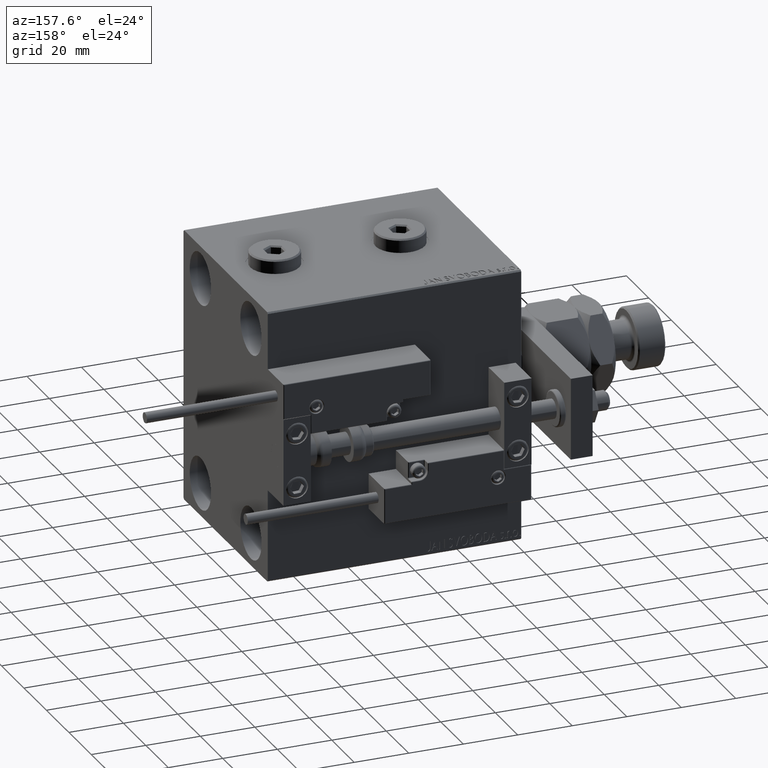
[diagram: clean part render]
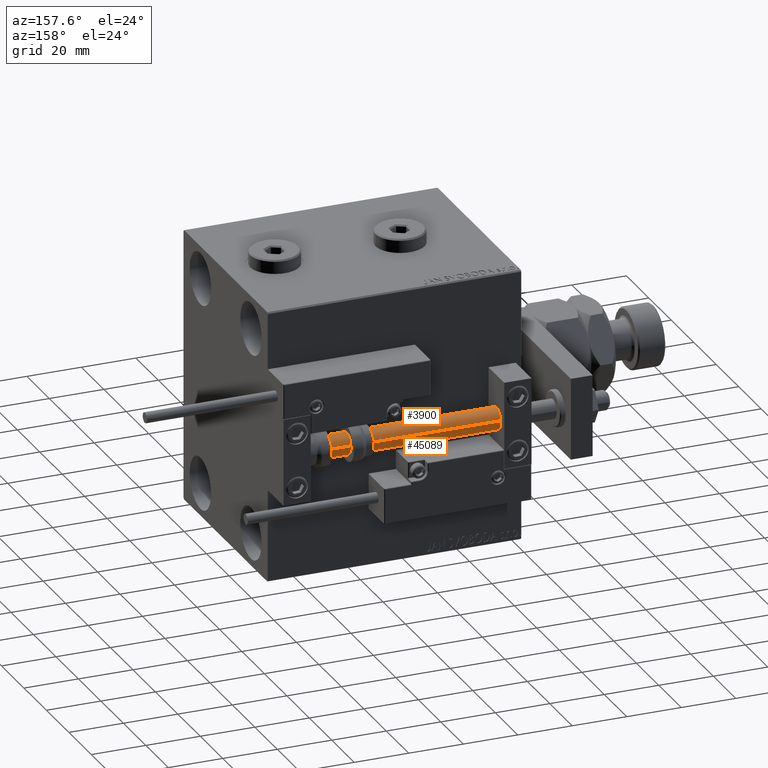
[diagram: same view with one multi-face feature highlighted, each face labeled with its STEP entity id]
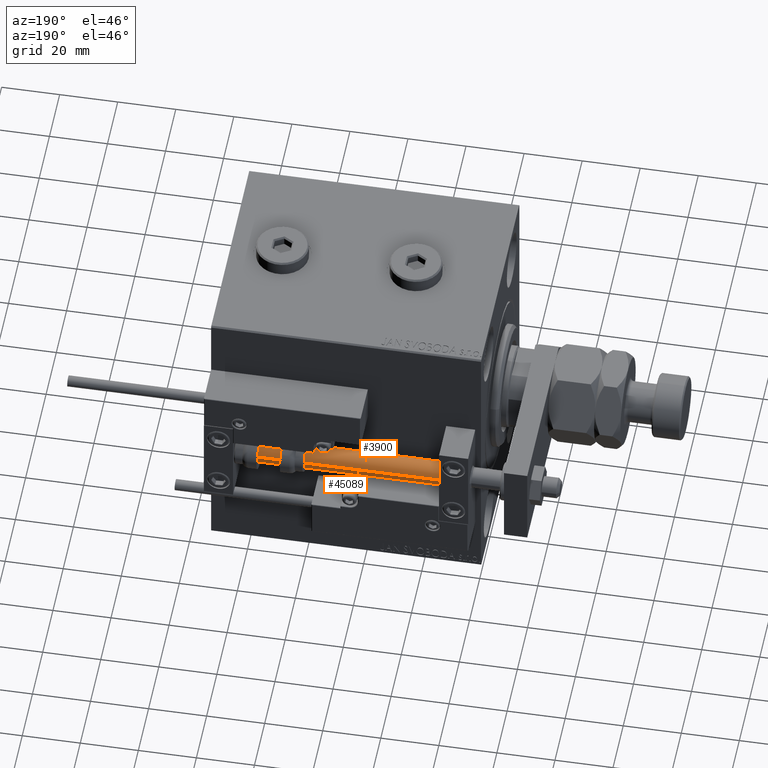
[diagram: same view with one multi-face feature highlighted, each face labeled with its STEP entity id]
A machine part, auxiliary view. The highlighted faces form ONE feature: a constant-radius fillet chain: 2 tangent blend faces with common blend radius 4 mm. The faces share edges in the B-rep.
A second angle (auxiliary view) of the same feature is appended — it is thin or edge-on in the first view.
Their STEP definitions:
[1] entity #45089 (Cylinder):
#2297 = DIRECTION ( 'NONE',  ( -0.000000000000000000, -0.000000000000000000, -1.000000000000000000 ) ) ;
#2981 = CARTESIAN_POINT ( 'NONE',  ( -4.000000000000000000, 0.000000000000000000, 2.000000000000029310 ) ) ;
#8127 = EDGE_LOOP ( 'NONE', ( #23592, #14629, #40220, #35032 ) ) ;
#8922 = AXIS2_PLACEMENT_3D ( 'NONE', #25630, #21074, #33170 ) ;
#10042 = DIRECTION ( 'NONE',  ( -0.000000000000000000, -0.000000000000000000, -1.000000000000000000 ) ) ;
#10097 = FACE_OUTER_BOUND ( 'NONE', #8127, .T. ) ;
#10645 = AXIS2_PLACEMENT_3D ( 'NONE', #51470, #2297, #43392 ) ;
#12441 = CARTESIAN_POINT ( 'NONE',  ( 4.000000000000000000, 4.898587196589411843E-16, 93.00000000000000000 ) ) ;
#12802 = DIRECTION ( 'NONE',  ( -0.000000000000000000, -0.000000000000000000, -1.000000000000000000 ) ) ;
#14599 = LINE ( 'NONE', #30421, #47786 ) ;
#14608 = VERTEX_POINT ( 'NONE', #18823 ) ;
#14629 = ORIENTED_EDGE ( 'NONE', *, *, #52335, .F. ) ;
#15678 = CARTESIAN_POINT ( 'NONE',  ( -4.000000000000000000, 0.000000000000000000, 93.00000000000000000 ) ) ;
#18823 = CARTESIAN_POINT ( 'NONE',  ( 4.000000000000000000, 4.898587196589411843E-16, 2.000000000000029310 ) ) ;
#20614 = VERTEX_POINT ( 'NONE', #12441 ) ;
#21074 = DIRECTION ( 'NONE',  ( -0.000000000000000000, -0.000000000000000000, 1.000000000000000000 ) ) ;
#21192 = CARTESIAN_POINT ( 'NONE',  ( 0.000000000000000000, 0.000000000000000000, 93.00000000000000000 ) ) ;
#22421 = CYLINDRICAL_SURFACE ( 'NONE', #10645, 4.000000000000000000 ) ;
#23592 = ORIENTED_EDGE ( 'NONE', *, *, #45952, .F. ) ;
#24308 = CIRCLE ( 'NONE', #8922, 4.000000000000000000 ) ;
#25630 = CARTESIAN_POINT ( 'NONE',  ( 0.000000000000000000, 0.000000000000000000, 2.000000000000029310 ) ) ;
#28834 = VERTEX_POINT ( 'NONE', #15678 ) ;
#29170 = CARTESIAN_POINT ( 'NONE',  ( 4.000000000000000000, 4.898587196589411843E-16, 93.00000000000000000 ) ) ;
#30421 = CARTESIAN_POINT ( 'NONE',  ( -4.000000000000000000, 0.000000000000000000, 93.00000000000000000 ) ) ;
#30558 = AXIS2_PLACEMENT_3D ( 'NONE', #21192, #37595, #32484 ) ;
#32484 = DIRECTION ( 'NONE',  ( 1.000000000000000000, 0.000000000000000000, 0.000000000000000000 ) ) ;
#33170 = DIRECTION ( 'NONE',  ( 1.000000000000000000, 0.000000000000000000, 0.000000000000000000 ) ) ;
#35032 = ORIENTED_EDGE ( 'NONE', *, *, #43444, .T. ) ;
#36974 = LINE ( 'NONE', #29170, #45898 ) ;
#37595 = DIRECTION ( 'NONE',  ( 0.000000000000000000, 0.000000000000000000, 1.000000000000000000 ) ) ;
#40220 = ORIENTED_EDGE ( 'NONE', *, *, #50710, .T. ) ;
#41740 = VERTEX_POINT ( 'NONE', #2981 ) ;
#43392 = DIRECTION ( 'NONE',  ( -1.000000000000000000, 0.000000000000000000, 0.000000000000000000 ) ) ;
#43444 = EDGE_CURVE ( 'NONE', #41740, #14608, #24308, .T. ) ;
#45089 = ADVANCED_FACE ( 'NONE', ( #10097 ), #22421, .T. ) ;
#45898 = VECTOR ( 'NONE', #12802, 1000.000000000000000 ) ;
#45952 = EDGE_CURVE ( 'NONE', #20614, #14608, #36974, .T. ) ;
#46897 = CIRCLE ( 'NONE', #30558, 4.000000000000000000 ) ;
#47786 = VECTOR ( 'NONE', #10042, 1000.000000000000000 ) ;
#50710 = EDGE_CURVE ( 'NONE', #28834, #41740, #14599, .T. ) ;
#51470 = CARTESIAN_POINT ( 'NONE',  ( 0.000000000000000000, 0.000000000000000000, 93.00000000000000000 ) ) ;
#52335 = EDGE_CURVE ( 'NONE', #28834, #20614, #46897, .T. ) ;
[2] entity #3900 (Cylinder):
#678 = DIRECTION ( 'NONE',  ( -0.000000000000000000, -0.000000000000000000, -1.000000000000000000 ) ) ;
#1734 = DIRECTION ( 'NONE',  ( -0.000000000000000000, -0.000000000000000000, 1.000000000000000000 ) ) ;
#2981 = CARTESIAN_POINT ( 'NONE',  ( -4.000000000000000000, 0.000000000000000000, 2.000000000000029310 ) ) ;
#3900 = ADVANCED_FACE ( 'NONE', ( #21328 ), #25359, .T. ) ;
#6356 = ORIENTED_EDGE ( 'NONE', *, *, #45952, .T. ) ;
#10042 = DIRECTION ( 'NONE',  ( -0.000000000000000000, -0.000000000000000000, -1.000000000000000000 ) ) ;
#10415 = EDGE_LOOP ( 'NONE', ( #39890, #6356, #50952, #16734 ) ) ;
#11717 = AXIS2_PLACEMENT_3D ( 'NONE', #39983, #23040, #19545 ) ;
#12441 = CARTESIAN_POINT ( 'NONE',  ( 4.000000000000000000, 4.898587196589411843E-16, 93.00000000000000000 ) ) ;
#12802 = DIRECTION ( 'NONE',  ( -0.000000000000000000, -0.000000000000000000, -1.000000000000000000 ) ) ;
#14599 = LINE ( 'NONE', #30421, #47786 ) ;
#14608 = VERTEX_POINT ( 'NONE', #18823 ) ;
#15678 = CARTESIAN_POINT ( 'NONE',  ( -4.000000000000000000, 0.000000000000000000, 93.00000000000000000 ) ) ;
#15758 = CIRCLE ( 'NONE', #18352, 4.000000000000000000 ) ;
#16734 = ORIENTED_EDGE ( 'NONE', *, *, #50710, .F. ) ;
#17303 = DIRECTION ( 'NONE',  ( -1.000000000000000000, 0.000000000000000000, 0.000000000000000000 ) ) ;
#18352 = AXIS2_PLACEMENT_3D ( 'NONE', #34751, #1734, #42840 ) ;
#18823 = CARTESIAN_POINT ( 'NONE',  ( 4.000000000000000000, 4.898587196589411843E-16, 2.000000000000029310 ) ) ;
#19545 = DIRECTION ( 'NONE',  ( 1.000000000000000000, 0.000000000000000000, 0.000000000000000000 ) ) ;
#20614 = VERTEX_POINT ( 'NONE', #12441 ) ;
#21328 = FACE_OUTER_BOUND ( 'NONE', #10415, .T. ) ;
#22619 = AXIS2_PLACEMENT_3D ( 'NONE', #45812, #678, #17303 ) ;
#23040 = DIRECTION ( 'NONE',  ( 0.000000000000000000, 0.000000000000000000, 1.000000000000000000 ) ) ;
#25359 = CYLINDRICAL_SURFACE ( 'NONE', #22619, 4.000000000000000000 ) ;
#25699 = EDGE_CURVE ( 'NONE', #14608, #41740, #15758, .T. ) ;
#28834 = VERTEX_POINT ( 'NONE', #15678 ) ;
#29170 = CARTESIAN_POINT ( 'NONE',  ( 4.000000000000000000, 4.898587196589411843E-16, 93.00000000000000000 ) ) ;
#30421 = CARTESIAN_POINT ( 'NONE',  ( -4.000000000000000000, 0.000000000000000000, 93.00000000000000000 ) ) ;
#34751 = CARTESIAN_POINT ( 'NONE',  ( 0.000000000000000000, 0.000000000000000000, 2.000000000000029310 ) ) ;
#36974 = LINE ( 'NONE', #29170, #45898 ) ;
#39134 = CIRCLE ( 'NONE', #11717, 4.000000000000000000 ) ;
#39890 = ORIENTED_EDGE ( 'NONE', *, *, #52543, .F. ) ;
#39983 = CARTESIAN_POINT ( 'NONE',  ( 0.000000000000000000, 0.000000000000000000, 93.00000000000000000 ) ) ;
#41740 = VERTEX_POINT ( 'NONE', #2981 ) ;
#42840 = DIRECTION ( 'NONE',  ( 1.000000000000000000, 0.000000000000000000, 0.000000000000000000 ) ) ;
#45812 = CARTESIAN_POINT ( 'NONE',  ( 0.000000000000000000, 0.000000000000000000, 93.00000000000000000 ) ) ;
#45898 = VECTOR ( 'NONE', #12802, 1000.000000000000000 ) ;
#45952 = EDGE_CURVE ( 'NONE', #20614, #14608, #36974, .T. ) ;
#47786 = VECTOR ( 'NONE', #10042, 1000.000000000000000 ) ;
#50710 = EDGE_CURVE ( 'NONE', #28834, #41740, #14599, .T. ) ;
#50952 = ORIENTED_EDGE ( 'NONE', *, *, #25699, .T. ) ;
#52543 = EDGE_CURVE ( 'NONE', #20614, #28834, #39134, .T. ) ;